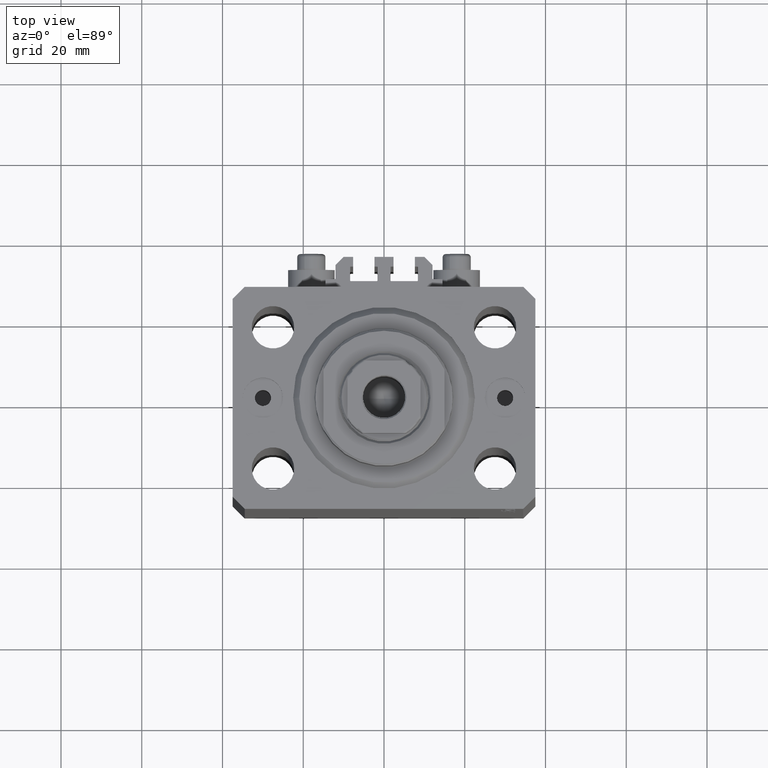
[diagram: clean part render]
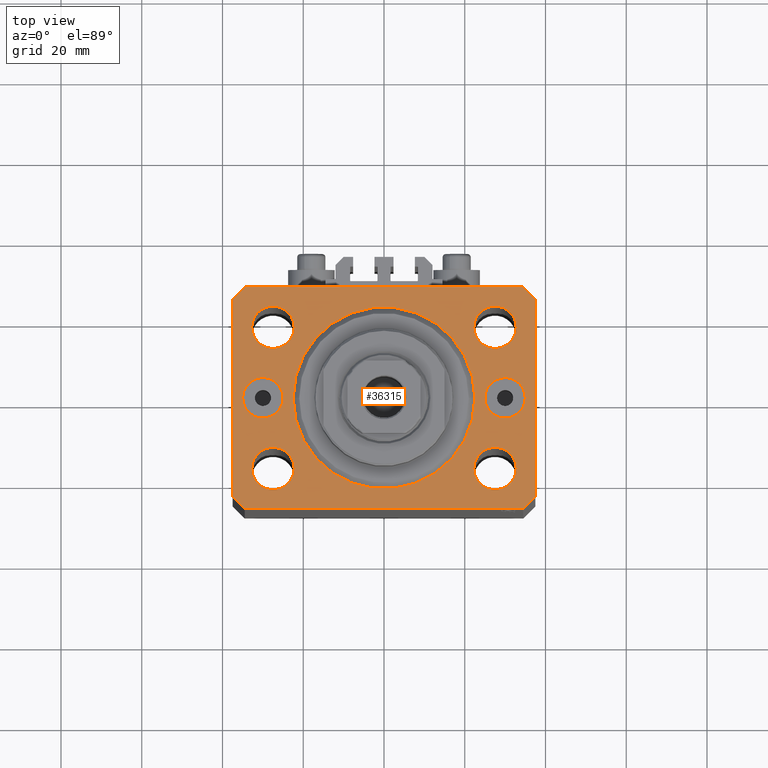
[diagram: same view with one face highlighted and labeled with its STEP entity id]
A machine part, top view. The second image highlights one B-rep face of the part: STEP entity #36315.
In plain terms, the highlighted planar face has unit normal (0, 0, 1).
Its self-contained STEP definition (entity closure, byte-faithful):
#13 = DIRECTION ( 'NONE',  ( 0.000000000000000000, -1.000000000000000000, 0.000000000000000000 ) ) ;
#183 = EDGE_LOOP ( 'NONE', ( #45097, #18446 ) ) ;
#238 = DIRECTION ( 'NONE',  ( 0.000000000000000000, 0.000000000000000000, 1.000000000000000000 ) ) ;
#545 = EDGE_CURVE ( 'NONE', #9805, #18679, #29561, .T. ) ;
#641 = CIRCLE ( 'NONE', #6738, 4.999999999999997335 ) ;
#879 = DIRECTION ( 'NONE',  ( 0.000000000000000000, 0.000000000000000000, 1.000000000000000000 ) ) ;
#900 = VECTOR ( 'NONE', #11599, 1000.000000000000000 ) ;
#1224 = ORIENTED_EDGE ( 'NONE', *, *, #21404, .F. ) ;
#1397 = VERTEX_POINT ( 'NONE', #35552 ) ;
#1678 = EDGE_CURVE ( 'NONE', #1397, #39851, #6410, .T. ) ;
#1947 = CARTESIAN_POINT ( 'NONE',  ( 37.50000000000051870, 24.49999999999995381, 0.000000000000000000 ) ) ;
#2075 = DIRECTION ( 'NONE',  ( 1.000000000000000000, 0.000000000000000000, 0.000000000000000000 ) ) ;
#2187 = CARTESIAN_POINT ( 'NONE',  ( -34.49999999999999289, 27.50000000000000000, 0.000000000000000000 ) ) ;
#2266 = CARTESIAN_POINT ( 'NONE',  ( -24.99999999999999645, 0.000000000000000000, 0.000000000000000000 ) ) ;
#2554 = DIRECTION ( 'NONE',  ( 0.000000000000000000, 0.000000000000000000, 1.000000000000000000 ) ) ;
#2689 = EDGE_CURVE ( 'NONE', #28534, #18158, #26311, .T. ) ;
#2736 = FACE_BOUND ( 'NONE', #32526, .T. ) ;
#3238 = DIRECTION ( 'NONE',  ( 1.000000000000000000, 0.000000000000000000, 0.000000000000000000 ) ) ;
#3280 = DIRECTION ( 'NONE',  ( 0.7071067811865474617, 0.7071067811865474617, 0.000000000000000000 ) ) ;
#3364 = DIRECTION ( 'NONE',  ( 0.000000000000000000, 0.000000000000000000, 1.000000000000000000 ) ) ;
#3820 = DIRECTION ( 'NONE',  ( 0.000000000000000000, 0.000000000000000000, 1.000000000000000000 ) ) ;
#4051 = CARTESIAN_POINT ( 'NONE',  ( 27.50000000000000000, 17.49999999999999289, 0.000000000000000000 ) ) ;
#4277 = DIRECTION ( 'NONE',  ( 1.000000000000000000, 0.000000000000000000, 0.000000000000000000 ) ) ;
#4302 = CARTESIAN_POINT ( 'NONE',  ( -37.49999999999999289, 24.50000000000000000, 0.000000000000000000 ) ) ;
#4878 = CARTESIAN_POINT ( 'NONE',  ( -27.50000000000000000, 17.49999999999999645, 0.000000000000000000 ) ) ;
#5270 = CIRCLE ( 'NONE', #41848, 4.999999999999997335 ) ;
#5431 = CARTESIAN_POINT ( 'NONE',  ( -27.50000000000000000, 17.49999999999999645, 0.000000000000000000 ) ) ;
#5594 = DIRECTION ( 'NONE',  ( 0.000000000000000000, 0.000000000000000000, 1.000000000000000000 ) ) ;
#5848 = FACE_BOUND ( 'NONE', #41840, .T. ) ;
#5991 = EDGE_CURVE ( 'NONE', #16456, #45326, #34817, .T. ) ;
#6060 = ORIENTED_EDGE ( 'NONE', *, *, #38607, .F. ) ;
#6156 = VERTEX_POINT ( 'NONE', #30520 ) ;
#6410 = CIRCLE ( 'NONE', #10224, 22.50000000000000355 ) ;
#6738 = AXIS2_PLACEMENT_3D ( 'NONE', #36354, #18698, #36823 ) ;
#6845 = CIRCLE ( 'NONE', #11415, 5.250000000000000888 ) ;
#6865 = EDGE_LOOP ( 'NONE', ( #24057, #37445, #46916, #43476, #18738, #19851, #12164, #13503 ) ) ;
#7036 = VERTEX_POINT ( 'NONE', #35092 ) ;
#7558 = LINE ( 'NONE', #22107, #41203 ) ;
#7772 = CARTESIAN_POINT ( 'NONE',  ( -27.49999999999999289, -17.50000000000000000, 0.000000000000000000 ) ) ;
#7873 = CARTESIAN_POINT ( 'NONE',  ( -30.00000000000000000, 0.000000000000000000, 0.000000000000000000 ) ) ;
#8331 = DIRECTION ( 'NONE',  ( 0.000000000000000000, -0.000000000000000000, -1.000000000000000000 ) ) ;
#9224 = CIRCLE ( 'NONE', #28266, 5.250000000000000888 ) ;
#9805 = VERTEX_POINT ( 'NONE', #1947 ) ;
#9835 = CIRCLE ( 'NONE', #13623, 5.250000000000000888 ) ;
#9894 = DIRECTION ( 'NONE',  ( 0.000000000000000000, 0.000000000000000000, 1.000000000000000000 ) ) ;
#9972 = VERTEX_POINT ( 'NONE', #25781 ) ;
#10116 = EDGE_CURVE ( 'NONE', #32936, #35671, #28855, .T. ) ;
#10224 = AXIS2_PLACEMENT_3D ( 'NONE', #29000, #43562, #3238 ) ;
#10307 = DIRECTION ( 'NONE',  ( 1.000000000000000000, 0.000000000000000000, 0.000000000000000000 ) ) ;
#10566 = EDGE_CURVE ( 'NONE', #18813, #6156, #641, .T. ) ;
#10795 = CIRCLE ( 'NONE', #15347, 5.250000000000000888 ) ;
#11027 = CARTESIAN_POINT ( 'NONE',  ( -27.49999999999999289, -17.50000000000000000, 0.000000000000000000 ) ) ;
#11188 = CARTESIAN_POINT ( 'NONE',  ( 37.50000000000051870, 24.49999999999995381, 0.000000000000000000 ) ) ;
#11415 = AXIS2_PLACEMENT_3D ( 'NONE', #4051, #21938, #22175 ) ;
#11464 = EDGE_CURVE ( 'NONE', #12101, #28075, #9835, .T. ) ;
#11599 = DIRECTION ( 'NONE',  ( -1.000000000000000000, 0.000000000000000000, 0.000000000000000000 ) ) ;
#12010 = CARTESIAN_POINT ( 'NONE',  ( 27.49999999999999289, -17.50000000000000000, 0.000000000000000000 ) ) ;
#12101 = VERTEX_POINT ( 'NONE', #29095 ) ;
#12164 = ORIENTED_EDGE ( 'NONE', *, *, #19812, .T. ) ;
#12500 = AXIS2_PLACEMENT_3D ( 'NONE', #11027, #21270, #10307 ) ;
#12709 = CARTESIAN_POINT ( 'NONE',  ( 34.49999999999999289, -27.49999999999999645, 0.000000000000000000 ) ) ;
#13251 = FACE_BOUND ( 'NONE', #28112, .T. ) ;
#13290 = CARTESIAN_POINT ( 'NONE',  ( 37.49999999999999289, -24.50000000000000000, 0.000000000000000000 ) ) ;
#13503 = ORIENTED_EDGE ( 'NONE', *, *, #545, .T. ) ;
#13623 = AXIS2_PLACEMENT_3D ( 'NONE', #5431, #24016, #2075 ) ;
#13818 = EDGE_CURVE ( 'NONE', #20373, #9972, #21406, .T. ) ;
#14342 = DIRECTION ( 'NONE',  ( 1.000000000000000000, 0.000000000000000000, 0.000000000000000000 ) ) ;
#14387 = EDGE_CURVE ( 'NONE', #35671, #32936, #6845, .T. ) ;
#14722 = VECTOR ( 'NONE', #4277, 1000.000000000000000 ) ;
#14960 = DIRECTION ( 'NONE',  ( 0.7071067811865483499, -0.7071067811865466846, 0.000000000000000000 ) ) ;
#15347 = AXIS2_PLACEMENT_3D ( 'NONE', #7772, #26360, #32830 ) ;
#15444 = DIRECTION ( 'NONE',  ( 1.000000000000000000, 0.000000000000000000, 0.000000000000000000 ) ) ;
#15561 = EDGE_CURVE ( 'NONE', #45326, #16456, #38117, .T. ) ;
#15674 = ORIENTED_EDGE ( 'NONE', *, *, #15561, .F. ) ;
#16253 = EDGE_CURVE ( 'NONE', #6156, #18813, #5270, .T. ) ;
#16317 = CIRCLE ( 'NONE', #25430, 22.50000000000000355 ) ;
#16405 = DIRECTION ( 'NONE',  ( 1.076236605503979380E-14, 1.000000000000000000, 0.000000000000000000 ) ) ;
#16456 = VERTEX_POINT ( 'NONE', #39335 ) ;
#16575 = EDGE_LOOP ( 'NONE', ( #15674, #21841 ) ) ;
#17318 = ORIENTED_EDGE ( 'NONE', *, *, #16253, .T. ) ;
#17449 = ORIENTED_EDGE ( 'NONE', *, *, #10566, .T. ) ;
#18158 = VERTEX_POINT ( 'NONE', #36290 ) ;
#18273 = CARTESIAN_POINT ( 'NONE',  ( 34.99999999999999289, 0.000000000000000000, 0.000000000000000000 ) ) ;
#18446 = ORIENTED_EDGE ( 'NONE', *, *, #14387, .F. ) ;
#18629 = DIRECTION ( 'NONE',  ( 1.000000000000000000, 0.000000000000000000, 0.000000000000000000 ) ) ;
#18679 = VERTEX_POINT ( 'NONE', #34292 ) ;
#18698 = DIRECTION ( 'NONE',  ( 0.000000000000000000, -0.000000000000000000, -1.000000000000000000 ) ) ;
#18738 = ORIENTED_EDGE ( 'NONE', *, *, #26025, .T. ) ;
#18813 = VERTEX_POINT ( 'NONE', #18273 ) ;
#19208 = DIRECTION ( 'NONE',  ( 1.000000000000000000, 0.000000000000000000, 0.000000000000000000 ) ) ;
#19448 = VECTOR ( 'NONE', #23441, 1000.000000000000000 ) ;
#19466 = CARTESIAN_POINT ( 'NONE',  ( 34.50000000000056843, 27.50000000000000000, 0.000000000000000000 ) ) ;
#19812 = EDGE_CURVE ( 'NONE', #9972, #9805, #24237, .T. ) ;
#19851 = ORIENTED_EDGE ( 'NONE', *, *, #13818, .T. ) ;
#20373 = VERTEX_POINT ( 'NONE', #12709 ) ;
#20407 = FACE_BOUND ( 'NONE', #24650, .T. ) ;
#20856 = ORIENTED_EDGE ( 'NONE', *, *, #29053, .F. ) ;
#20908 = CARTESIAN_POINT ( 'NONE',  ( 32.75000000000000000, 17.49999999999999289, 0.000000000000000000 ) ) ;
#21270 = DIRECTION ( 'NONE',  ( 0.000000000000000000, 0.000000000000000000, 1.000000000000000000 ) ) ;
#21391 = CARTESIAN_POINT ( 'NONE',  ( 0.000000000000000000, 0.000000000000000000, 0.000000000000000000 ) ) ;
#21404 = EDGE_CURVE ( 'NONE', #7036, #31933, #9224, .T. ) ;
#21406 = LINE ( 'NONE', #35971, #40370 ) ;
#21448 = AXIS2_PLACEMENT_3D ( 'NONE', #4878, #5594, #19208 ) ;
#21654 = CIRCLE ( 'NONE', #34642, 5.250000000000000888 ) ;
#21660 = ORIENTED_EDGE ( 'NONE', *, *, #28415, .F. ) ;
#21841 = ORIENTED_EDGE ( 'NONE', *, *, #5991, .F. ) ;
#21938 = DIRECTION ( 'NONE',  ( 0.000000000000000000, 0.000000000000000000, 1.000000000000000000 ) ) ;
#21947 = CARTESIAN_POINT ( 'NONE',  ( -30.00000000000000000, 0.000000000000000000, 0.000000000000000000 ) ) ;
#22107 = CARTESIAN_POINT ( 'NONE',  ( -37.49999999999999289, -24.50000000000000000, 0.000000000000000000 ) ) ;
#22175 = DIRECTION ( 'NONE',  ( 1.000000000000000000, 0.000000000000000000, 0.000000000000000000 ) ) ;
#22272 = CARTESIAN_POINT ( 'NONE',  ( 22.25000000000000000, 17.49999999999999289, 0.000000000000000000 ) ) ;
#22416 = CARTESIAN_POINT ( 'NONE',  ( -34.49999999999998579, -27.49999999999999645, 0.000000000000000000 ) ) ;
#23441 = DIRECTION ( 'NONE',  ( -0.7071067811865471286, -0.7071067811865479058, 0.000000000000000000 ) ) ;
#23629 = AXIS2_PLACEMENT_3D ( 'NONE', #21947, #3820, #18629 ) ;
#23841 = VECTOR ( 'NONE', #40765, 1000.000000000000114 ) ;
#24016 = DIRECTION ( 'NONE',  ( 0.000000000000000000, 0.000000000000000000, 1.000000000000000000 ) ) ;
#24057 = ORIENTED_EDGE ( 'NONE', *, *, #43094, .T. ) ;
#24237 = LINE ( 'NONE', #13290, #30519 ) ;
#24431 = DIRECTION ( 'NONE',  ( 1.000000000000000000, 0.000000000000000000, -0.000000000000000000 ) ) ;
#24650 = EDGE_LOOP ( 'NONE', ( #17449, #17318 ) ) ;
#24859 = ORIENTED_EDGE ( 'NONE', *, *, #27864, .F. ) ;
#25308 = LINE ( 'NONE', #4302, #34541 ) ;
#25430 = AXIS2_PLACEMENT_3D ( 'NONE', #21391, #2554, #42175 ) ;
#25781 = CARTESIAN_POINT ( 'NONE',  ( 37.49999999999999289, -24.50000000000000000, 0.000000000000000000 ) ) ;
#26025 = EDGE_CURVE ( 'NONE', #34352, #20373, #44136, .T. ) ;
#26311 = LINE ( 'NONE', #2187, #19448 ) ;
#26360 = DIRECTION ( 'NONE',  ( 0.000000000000000000, 0.000000000000000000, 1.000000000000000000 ) ) ;
#26445 = EDGE_CURVE ( 'NONE', #18158, #40690, #25308, .T. ) ;
#26561 = DIRECTION ( 'NONE',  ( 0.000000000000000000, 0.000000000000000000, 1.000000000000000000 ) ) ;
#27799 = FACE_BOUND ( 'NONE', #34873, .T. ) ;
#27864 = EDGE_CURVE ( 'NONE', #39851, #1397, #16317, .T. ) ;
#27942 = ORIENTED_EDGE ( 'NONE', *, *, #11464, .F. ) ;
#27981 = ORIENTED_EDGE ( 'NONE', *, *, #1678, .F. ) ;
#28034 = FACE_BOUND ( 'NONE', #16575, .T. ) ;
#28075 = VERTEX_POINT ( 'NONE', #44758 ) ;
#28112 = EDGE_LOOP ( 'NONE', ( #35375, #27942 ) ) ;
#28266 = AXIS2_PLACEMENT_3D ( 'NONE', #37151, #879, #15444 ) ;
#28310 = CARTESIAN_POINT ( 'NONE',  ( -22.24999999999999289, -17.50000000000000000, 0.000000000000000000 ) ) ;
#28415 = EDGE_CURVE ( 'NONE', #34477, #35291, #30003, .T. ) ;
#28534 = VERTEX_POINT ( 'NONE', #35021 ) ;
#28855 = CIRCLE ( 'NONE', #34165, 5.250000000000000888 ) ;
#29000 = CARTESIAN_POINT ( 'NONE',  ( 0.000000000000000000, 0.000000000000000000, 0.000000000000000000 ) ) ;
#29053 = EDGE_CURVE ( 'NONE', #31933, #7036, #21654, .T. ) ;
#29095 = CARTESIAN_POINT ( 'NONE',  ( -32.75000000000000000, 17.49999999999999645, 0.000000000000000000 ) ) ;
#29561 = LINE ( 'NONE', #11188, #23841 ) ;
#30003 = CIRCLE ( 'NONE', #12500, 5.250000000000000888 ) ;
#30201 = LINE ( 'NONE', #19466, #900 ) ;
#30519 = VECTOR ( 'NONE', #16405, 1000.000000000000000 ) ;
#30520 = CARTESIAN_POINT ( 'NONE',  ( 25.00000000000000000, 6.123233995736762338E-16, 0.000000000000000000 ) ) ;
#31933 = VERTEX_POINT ( 'NONE', #40048 ) ;
#32044 = AXIS2_PLACEMENT_3D ( 'NONE', #38761, #9894, #24431 ) ;
#32526 = EDGE_LOOP ( 'NONE', ( #21660, #6060 ) ) ;
#32830 = DIRECTION ( 'NONE',  ( 1.000000000000000000, 0.000000000000000000, 0.000000000000000000 ) ) ;
#32936 = VERTEX_POINT ( 'NONE', #20908 ) ;
#33317 = CARTESIAN_POINT ( 'NONE',  ( -32.74999999999999289, -17.50000000000000000, 0.000000000000000000 ) ) ;
#33876 = CARTESIAN_POINT ( 'NONE',  ( 30.00000000000000000, 0.000000000000000000, 0.000000000000000000 ) ) ;
#34165 = AXIS2_PLACEMENT_3D ( 'NONE', #36056, #3364, #14342 ) ;
#34292 = CARTESIAN_POINT ( 'NONE',  ( 34.50000000000056843, 27.50000000000000000, 0.000000000000000000 ) ) ;
#34352 = VERTEX_POINT ( 'NONE', #42970 ) ;
#34477 = VERTEX_POINT ( 'NONE', #28310 ) ;
#34541 = VECTOR ( 'NONE', #13, 1000.000000000000000 ) ;
#34642 = AXIS2_PLACEMENT_3D ( 'NONE', #12010, #26561, #41122 ) ;
#34817 = CIRCLE ( 'NONE', #35567, 5.000000000000000888 ) ;
#34873 = EDGE_LOOP ( 'NONE', ( #20856, #1224 ) ) ;
#35021 = CARTESIAN_POINT ( 'NONE',  ( -34.49999999999999289, 27.50000000000000000, 0.000000000000000000 ) ) ;
#35092 = CARTESIAN_POINT ( 'NONE',  ( 22.24999999999999289, -17.50000000000000000, 0.000000000000000000 ) ) ;
#35291 = VERTEX_POINT ( 'NONE', #33317 ) ;
#35375 = ORIENTED_EDGE ( 'NONE', *, *, #38662, .F. ) ;
#35552 = CARTESIAN_POINT ( 'NONE',  ( -22.50000000000000355, 2.755455298081545172E-15, 0.000000000000000000 ) ) ;
#35567 = AXIS2_PLACEMENT_3D ( 'NONE', #7873, #238, #43911 ) ;
#35671 = VERTEX_POINT ( 'NONE', #22272 ) ;
#35971 = CARTESIAN_POINT ( 'NONE',  ( 34.49999999999999289, -27.49999999999999645, 0.000000000000000000 ) ) ;
#36056 = CARTESIAN_POINT ( 'NONE',  ( 27.50000000000000000, 17.49999999999999289, 0.000000000000000000 ) ) ;
#36073 = EDGE_CURVE ( 'NONE', #40690, #34352, #7558, .T. ) ;
#36290 = CARTESIAN_POINT ( 'NONE',  ( -37.49999999999999289, 24.50000000000000000, 0.000000000000000000 ) ) ;
#36315 = ADVANCED_FACE ( 'NONE', ( #46176, #13251, #38540, #27799, #2736, #5848, #28034, #20407 ), #42588, .T. ) ;
#36354 = CARTESIAN_POINT ( 'NONE',  ( 30.00000000000000000, 0.000000000000000000, 0.000000000000000000 ) ) ;
#36823 = DIRECTION ( 'NONE',  ( 1.000000000000000000, 0.000000000000000000, 0.000000000000000000 ) ) ;
#37151 = CARTESIAN_POINT ( 'NONE',  ( 27.49999999999999289, -17.50000000000000000, 0.000000000000000000 ) ) ;
#37210 = DIRECTION ( 'NONE',  ( 1.000000000000000000, 0.000000000000000000, 0.000000000000000000 ) ) ;
#37445 = ORIENTED_EDGE ( 'NONE', *, *, #2689, .T. ) ;
#38009 = CARTESIAN_POINT ( 'NONE',  ( -37.49999999999999289, -24.50000000000000000, 0.000000000000000000 ) ) ;
#38117 = CIRCLE ( 'NONE', #23629, 5.000000000000000888 ) ;
#38540 = FACE_BOUND ( 'NONE', #183, .T. ) ;
#38607 = EDGE_CURVE ( 'NONE', #35291, #34477, #10795, .T. ) ;
#38662 = EDGE_CURVE ( 'NONE', #28075, #12101, #41276, .T. ) ;
#38761 = CARTESIAN_POINT ( 'NONE',  ( 0.000000000000000000, 0.000000000000000000, 0.000000000000000000 ) ) ;
#39335 = CARTESIAN_POINT ( 'NONE',  ( -34.99999999999999289, 6.123233995736768255E-16, 0.000000000000000000 ) ) ;
#39851 = VERTEX_POINT ( 'NONE', #40359 ) ;
#40048 = CARTESIAN_POINT ( 'NONE',  ( 32.74999999999999289, -17.50000000000000000, 0.000000000000000000 ) ) ;
#40359 = CARTESIAN_POINT ( 'NONE',  ( 22.50000000000000355, 0.000000000000000000, 0.000000000000000000 ) ) ;
#40370 = VECTOR ( 'NONE', #3280, 1000.000000000000114 ) ;
#40690 = VERTEX_POINT ( 'NONE', #38009 ) ;
#40765 = DIRECTION ( 'NONE',  ( -0.7071067811865364705, 0.7071067811865584529, 0.000000000000000000 ) ) ;
#41122 = DIRECTION ( 'NONE',  ( 1.000000000000000000, 0.000000000000000000, 0.000000000000000000 ) ) ;
#41203 = VECTOR ( 'NONE', #14960, 1000.000000000000000 ) ;
#41276 = CIRCLE ( 'NONE', #21448, 5.250000000000000888 ) ;
#41840 = EDGE_LOOP ( 'NONE', ( #24859, #27981 ) ) ;
#41848 = AXIS2_PLACEMENT_3D ( 'NONE', #33876, #8331, #37210 ) ;
#42175 = DIRECTION ( 'NONE',  ( 1.000000000000000000, 0.000000000000000000, 0.000000000000000000 ) ) ;
#42588 = PLANE ( 'NONE',  #32044 ) ;
#42970 = CARTESIAN_POINT ( 'NONE',  ( -34.49999999999998579, -27.49999999999999645, 0.000000000000000000 ) ) ;
#43094 = EDGE_CURVE ( 'NONE', #18679, #28534, #30201, .T. ) ;
#43476 = ORIENTED_EDGE ( 'NONE', *, *, #36073, .T. ) ;
#43562 = DIRECTION ( 'NONE',  ( 0.000000000000000000, 0.000000000000000000, 1.000000000000000000 ) ) ;
#43911 = DIRECTION ( 'NONE',  ( 1.000000000000000000, 0.000000000000000000, 0.000000000000000000 ) ) ;
#44136 = LINE ( 'NONE', #22416, #14722 ) ;
#44758 = CARTESIAN_POINT ( 'NONE',  ( -22.25000000000000000, 17.49999999999999645, 0.000000000000000000 ) ) ;
#45097 = ORIENTED_EDGE ( 'NONE', *, *, #10116, .F. ) ;
#45326 = VERTEX_POINT ( 'NONE', #2266 ) ;
#46176 = FACE_OUTER_BOUND ( 'NONE', #6865, .T. ) ;
#46916 = ORIENTED_EDGE ( 'NONE', *, *, #26445, .T. ) ;